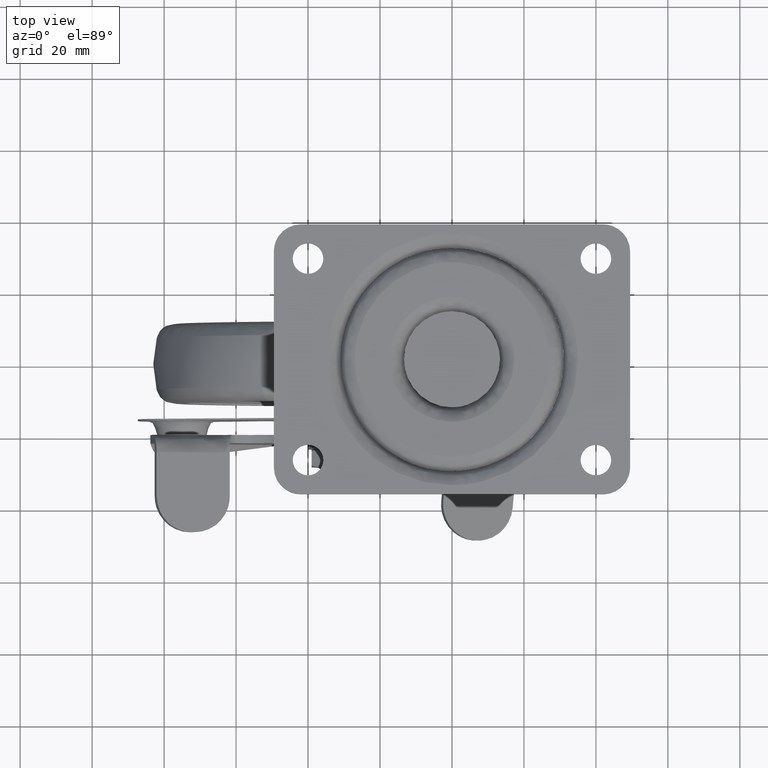
[diagram: clean part render]
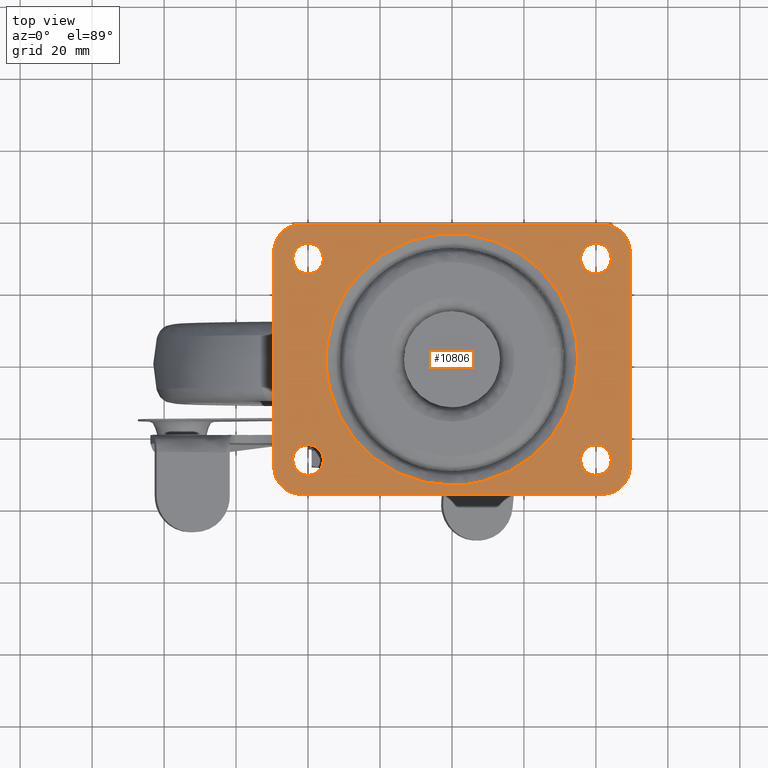
[diagram: same view with one face highlighted and labeled with its STEP entity id]
A machine part, top view. The second image highlights one B-rep face of the part: STEP entity #10806.
In plain terms, the highlighted face is a freeform B-spline surface patch.
Its self-contained STEP definition (entity closure, byte-faithful):
#8791=CARTESIAN_POINT('',(-43.245111158380283,25.255595950941501,-1.531020E-013));
#8792=VERTEX_POINT('',#8791);
#8793=CARTESIAN_POINT('',(-40.000000007030842,23.750000000000000,0.0));
#8794=VERTEX_POINT('',#8793);
#8795=CARTESIAN_POINT('',(-43.245111158380283,25.255595950941501,-1.531020E-013));
#8796=CARTESIAN_POINT('',(-42.873007158652783,24.814526816562061,-1.355464E-013));
#8797=CARTESIAN_POINT('',(-41.883611780580779,24.040215409840680,-8.886743E-014));
#8798=CARTESIAN_POINT('',(-40.654074814007579,23.748799131971840,-3.085877E-014));
#8799=CARTESIAN_POINT('',(-40.000000007030842,23.750000000000000,0.0));
#8800=B_SPLINE_CURVE_WITH_KNOTS('',3,(#8795,#8796,#8797,#8798,#8799),.UNSPECIFIED.,.F.,.U.,(4,1,4),(0.000000175335271,1.730903386719086,3.692519760569867),.UNSPECIFIED.);
#8801=EDGE_CURVE('',#8792,#8794,#8800,.T.);
#8803=CARTESIAN_POINT('',(-35.750000000000007,28.0,0.0));
#8804=VERTEX_POINT('',#8803);
#8805=CARTESIAN_POINT('',(-40.000000007030842,23.750000000000000,0.0));
#8806=CARTESIAN_POINT('',(-39.513149679257943,23.749630712320251,0.0));
#8807=CARTESIAN_POINT('',(-38.783260650930828,23.876905471908099,0.0));
#8808=CARTESIAN_POINT('',(-37.799607460227911,24.327477978835208,0.0));
#8809=CARTESIAN_POINT('',(-37.039899202134563,24.890879052696182,0.0));
#8810=CARTESIAN_POINT('',(-36.283952298328693,25.811568538038749,0.0));
#8811=CARTESIAN_POINT('',(-35.838469138767508,26.887272070460000,0.0));
#8812=CARTESIAN_POINT('',(-35.749994835164067,27.687099821345090,0.0));
#8813=CARTESIAN_POINT('',(-35.750000000000007,28.0,0.0));
#8814=B_SPLINE_CURVE_WITH_KNOTS('',3,(#8805,#8806,#8807,#8808,#8809,#8810,#8811,#8812,#8813),.UNSPECIFIED.,.F.,.U.,(4,1,1,1,1,1,4),(0.000000610169108,1.460384444602640,2.190586500925202,3.233799715285539,4.276791249332936,5.737286931635098,6.676051917444857),.UNSPECIFIED.);
#8815=EDGE_CURVE('',#8794,#8804,#8814,.T.);
#8817=CARTESIAN_POINT('',(-39.999999992969137,32.250000000000000,0.0));
#8818=VERTEX_POINT('',#8817);
#8819=CARTESIAN_POINT('',(-35.750000000000007,28.0,0.0));
#8820=CARTESIAN_POINT('',(-35.749377956127681,28.556413172663810,0.0));
#8821=CARTESIAN_POINT('',(-35.944070303442587,29.529485412856150,0.0));
#8822=CARTESIAN_POINT('',(-36.720879381863057,30.826101737560951,0.0));
#8823=CARTESIAN_POINT('',(-37.722016182516882,31.668431585995481,0.0));
#8824=CARTESIAN_POINT('',(-38.887436249880132,32.150727476769873,0.0));
#8825=CARTESIAN_POINT('',(-39.617518860167763,32.250123377384092,0.0));
#8826=CARTESIAN_POINT('',(-39.999999992969137,32.250000000000000,0.0));
#8827=B_SPLINE_CURVE_WITH_KNOTS('',3,(#8819,#8820,#8821,#8822,#8823,#8824,#8825,#8826),.UNSPECIFIED.,.F.,.U.,(4,1,1,1,1,4),(0.000000610181033,1.669013942489665,2.920797959335585,4.485463717099627,5.528614451983849,6.676051909519222),.UNSPECIFIED.);
#8828=EDGE_CURVE('',#8804,#8818,#8827,.T.);
#8830=CARTESIAN_POINT('',(-42.925507204851328,31.082840829404390,-2.609926E-013));
#8831=VERTEX_POINT('',#8830);
#8832=CARTESIAN_POINT('',(-39.999999992969137,32.250000000000000,0.0));
#8833=CARTESIAN_POINT('',(-40.436940726286593,32.250147792248057,-3.898070E-014));
#8834=CARTESIAN_POINT('',(-41.512504091818514,32.082824640266921,-1.349347E-013));
#8835=CARTESIAN_POINT('',(-42.462834955156417,31.523338014700119,-2.197163E-013));
#8836=CARTESIAN_POINT('',(-42.925507204851328,31.082840829404390,-2.609926E-013));
#8837=B_SPLINE_CURVE_WITH_KNOTS('',3,(#8832,#8833,#8834,#8835,#8836),.UNSPECIFIED.,.F.,.U.,(4,1,4),(0.000000157543021,1.310877600387160,3.226753481196697),.UNSPECIFIED.);
#8838=EDGE_CURVE('',#8818,#8831,#8837,.T.);
#8915=CARTESIAN_POINT('',(-44.250000000000000,28.0,0.0));
#8916=VERTEX_POINT('',#8915);
#8917=CARTESIAN_POINT('',(-44.250000000000000,28.0,0.0));
#8918=CARTESIAN_POINT('',(-44.251052834216097,27.378224834722079,-3.468695E-014));
#8919=CARTESIAN_POINT('',(-44.027604194984967,26.384735975595522,-9.011068E-014));
#8920=CARTESIAN_POINT('',(-43.486006031199892,25.540295359438218,-1.372195E-013));
#8921=CARTESIAN_POINT('',(-43.245111158380283,25.255595950941501,-1.531020E-013));
#8922=B_SPLINE_CURVE_WITH_KNOTS('',3,(#8917,#8918,#8919,#8920,#8921),.UNSPECIFIED.,.F.,.U.,(4,1,4),(0.000000135857924,1.864682307735543,2.983537809848643),.UNSPECIFIED.);
#8923=EDGE_CURVE('',#8916,#8792,#8922,.T.);
#8945=CARTESIAN_POINT('',(-42.925507204851328,31.082840829404390,-2.609926E-013));
#8946=CARTESIAN_POINT('',(-43.186177658330521,30.835568386156648,-2.400586E-013));
#8947=CARTESIAN_POINT('',(-43.690212468562223,30.218360056900600,-1.878059E-013));
#8948=CARTESIAN_POINT('',(-44.149290726819729,29.149755732362749,-9.733806E-014));
#8949=CARTESIAN_POINT('',(-44.250068208116438,28.359292795765121,-3.041765E-014));
#8950=CARTESIAN_POINT('',(-44.250000000000000,28.0,0.0));
#8951=B_SPLINE_CURVE_WITH_KNOTS('',3,(#8945,#8946,#8947,#8948,#8949,#8950),.UNSPECIFIED.,.F.,.U.,(4,1,1,4),(0.000000168638875,1.077921643789269,2.371377519272554,3.449298994423457),.UNSPECIFIED.);
#8952=EDGE_CURVE('',#8831,#8916,#8951,.T.);
#9201=CARTESIAN_POINT('',(36.754888841619731,25.255595950941501,-1.531020E-013));
#9202=VERTEX_POINT('',#9201);
#9203=CARTESIAN_POINT('',(39.999999992969173,23.750000000000000,0.0));
#9204=VERTEX_POINT('',#9203);
#9205=CARTESIAN_POINT('',(36.754888841619731,25.255595950941501,-1.531020E-013));
#9206=CARTESIAN_POINT('',(37.176317317253670,24.755366457429741,-1.332193E-013));
#9207=CARTESIAN_POINT('',(38.192799264617243,24.004771096375329,-8.526241E-014));
#9208=CARTESIAN_POINT('',(39.422944903239490,23.749306665059791,-2.722504E-014));
#9209=CARTESIAN_POINT('',(39.999999992969173,23.750000000000000,0.0));
#9210=B_SPLINE_CURVE_WITH_KNOTS('',3,(#9205,#9206,#9207,#9208,#9209),.UNSPECIFIED.,.F.,.U.,(4,1,4),(0.000000175336035,1.961616549186187,3.692519760569872),.UNSPECIFIED.);
#9211=EDGE_CURVE('',#9202,#9204,#9210,.T.);
#9213=CARTESIAN_POINT('',(44.250000000000000,28.0,0.0));
#9214=VERTEX_POINT('',#9213);
#9215=CARTESIAN_POINT('',(39.999999992969173,23.750000000000000,0.0));
#9216=CARTESIAN_POINT('',(40.556445408870893,23.749354849617589,0.0));
#9217=CARTESIAN_POINT('',(41.425180527785713,23.923261653540258,0.0));
#9218=CARTESIAN_POINT('',(42.436436763717452,24.480076632192230,0.0));
#9219=CARTESIAN_POINT('',(43.283442485622082,25.210012440270098,0.0));
#9220=CARTESIAN_POINT('',(44.035257065258122,26.366118531252770,0.0));
#9221=CARTESIAN_POINT('',(44.250604888365267,27.443586028327470,0.0));
#9222=CARTESIAN_POINT('',(44.250000000000000,28.0,0.0));
#9223=B_SPLINE_CURVE_WITH_KNOTS('',3,(#9215,#9216,#9217,#9218,#9219,#9220,#9221,#9222),.UNSPECIFIED.,.F.,.U.,(4,1,1,1,1,4),(0.000000610169324,1.669013944460634,2.607857540631680,3.442252155308159,5.007039090484373,6.676051917444859),.UNSPECIFIED.);
#9224=EDGE_CURVE('',#9204,#9214,#9223,.T.);
#9226=CARTESIAN_POINT('',(40.000000007030863,32.250000000000000,0.0));
#9227=VERTEX_POINT('',#9226);
#9228=CARTESIAN_POINT('',(44.250000000000000,28.0,0.0));
#9229=CARTESIAN_POINT('',(44.251230130050963,28.660895496649729,0.0));
#9230=CARTESIAN_POINT('',(43.993345067628340,29.737599622740358,0.0));
#9231=CARTESIAN_POINT('',(43.163305846010857,30.915748122596799,0.0));
#9232=CARTESIAN_POINT('',(42.323740070911427,31.604615140984940,0.0));
#9233=CARTESIAN_POINT('',(41.286300071643588,32.110994052223852,0.0));
#9234=CARTESIAN_POINT('',(40.486839256383583,32.250374570230498,0.0));
#9235=CARTESIAN_POINT('',(40.000000007030863,32.250000000000000,0.0));
#9236=B_SPLINE_CURVE_WITH_KNOTS('',3,(#9228,#9229,#9230,#9231,#9232,#9233,#9234,#9235),.UNSPECIFIED.,.F.,.U.,(4,1,1,1,1,4),(0.000000610183116,1.981975355670111,3.233799711465569,4.276791244251564,5.215669661747876,6.676051909519231),.UNSPECIFIED.);
#9237=EDGE_CURVE('',#9214,#9227,#9236,.T.);
#9239=CARTESIAN_POINT('',(37.074492795148672,31.082840829404390,-2.609926E-013));
#9240=VERTEX_POINT('',#9239);
#9241=CARTESIAN_POINT('',(40.000000007030863,32.250000000000000,0.0));
#9242=CARTESIAN_POINT('',(39.428507514163982,32.250687210027067,-5.098443E-014));
#9243=CARTESIAN_POINT('',(38.353605483945628,32.029490212164013,-1.468794E-013));
#9244=CARTESIAN_POINT('',(37.439967714250173,31.430238402211572,-2.283876E-013));
#9245=CARTESIAN_POINT('',(37.074492795148672,31.082840829404390,-2.609926E-013));
#9246=B_SPLINE_CURVE_WITH_KNOTS('',3,(#9241,#9242,#9243,#9244,#9245),.UNSPECIFIED.,.F.,.U.,(4,1,4),(0.000000157543899,1.714167012814376,3.226753481196666),.UNSPECIFIED.);
#9247=EDGE_CURVE('',#9227,#9240,#9246,.T.);
#9324=CARTESIAN_POINT('',(35.750000000000007,28.0,0.0));
#9325=VERTEX_POINT('',#9324);
#9326=CARTESIAN_POINT('',(35.750000000000007,28.0,0.0));
#9327=CARTESIAN_POINT('',(35.749699396040647,27.533777501439179,-2.600914E-014));
#9328=CARTESIAN_POINT('',(35.915411621573391,26.539518146069721,-8.147585E-014));
#9329=CARTESIAN_POINT('',(36.413272852505763,25.658704744406020,-1.306138E-013));
#9330=CARTESIAN_POINT('',(36.754888841619731,25.255595950941501,-1.531020E-013));
#9331=B_SPLINE_CURVE_WITH_KNOTS('',3,(#9326,#9327,#9328,#9329,#9330),.UNSPECIFIED.,.F.,.U.,(4,1,4),(0.000000135857209,1.398581114896894,2.983537809848643),.UNSPECIFIED.);
#9332=EDGE_CURVE('',#9325,#9202,#9331,.T.);
#9355=CARTESIAN_POINT('',(37.074492795148672,31.082840829404390,-2.609926E-013));
#9356=CARTESIAN_POINT('',(36.839908730188753,30.860278397437071,-2.421505E-013));
#9357=CARTESIAN_POINT('',(36.375341750992163,30.305905208622349,-1.952174E-013));
#9358=CARTESIAN_POINT('',(35.876792992775577,29.257438914771459,-1.064545E-013));
#9359=CARTESIAN_POINT('',(35.749818451813702,28.431170086410759,-3.650276E-014));
#9360=CARTESIAN_POINT('',(35.750000000000007,28.0,0.0));
#9361=B_SPLINE_CURVE_WITH_KNOTS('',3,(#9355,#9356,#9357,#9358,#9359,#9360),.UNSPECIFIED.,.F.,.U.,(4,1,1,4),(0.000000168638768,0.970120060262026,2.155810984877763,3.449298994423449),.UNSPECIFIED.);
#9362=EDGE_CURVE('',#9240,#9325,#9361,.T.);
#9393=CARTESIAN_POINT('',(36.754888841619731,-30.744404049058499,-1.531020E-013));
#9394=VERTEX_POINT('',#9393);
#9395=CARTESIAN_POINT('',(39.999999992969173,-32.250000000000000,0.0));
#9396=VERTEX_POINT('',#9395);
#9397=CARTESIAN_POINT('',(36.754888841619731,-30.744404049058499,-1.531020E-013));
#9398=CARTESIAN_POINT('',(37.077512304696832,-31.126537956158899,-1.378808E-013));
#9399=CARTESIAN_POINT('',(37.588999811401408,-31.549891058715811,-1.137492E-013));
#9400=CARTESIAN_POINT('',(38.692681710472982,-32.098944578485899,-6.167832E-014));
#9401=CARTESIAN_POINT('',(39.422894033882798,-32.250707943630331,-2.722744E-014));
#9402=CARTESIAN_POINT('',(39.999999992969173,-32.250000000000000,0.0));
#9403=B_SPLINE_CURVE_WITH_KNOTS('',3,(#9397,#9398,#9399,#9400,#9401,#9402),.UNSPECIFIED.,.F.,.U.,(4,1,1,4),(0.000000175333936,1.500125857536979,1.961616549185407,3.692519760569879),.UNSPECIFIED.);
#9404=EDGE_CURVE('',#9394,#9396,#9403,.T.);
#9406=CARTESIAN_POINT('',(44.250000000000000,-28.0,0.0));
#9407=VERTEX_POINT('',#9406);
#9408=CARTESIAN_POINT('',(39.999999992969173,-32.250000000000000,0.0));
#9409=CARTESIAN_POINT('',(40.382450175506378,-32.250061041285818,0.0));
#9410=CARTESIAN_POINT('',(41.251811093979292,-32.132121424247217,0.0));
#9411=CARTESIAN_POINT('',(42.368086524723360,-31.604100118658732,0.0));
#9412=CARTESIAN_POINT('',(43.328613959620867,-30.733506631489210,0.0));
#9413=CARTESIAN_POINT('',(44.049089849958747,-29.564326627845929,0.0));
#9414=CARTESIAN_POINT('',(44.250593334727157,-28.556401722722288,0.0));
#9415=CARTESIAN_POINT('',(44.250000000000000,-28.0,0.0));
#9416=B_SPLINE_CURVE_WITH_KNOTS('',3,(#9408,#9409,#9410,#9411,#9412,#9413,#9414,#9415),.UNSPECIFIED.,.F.,.U.,(4,1,1,1,1,4),(0.000000610171485,1.147434104841432,2.607857540632567,3.650905271732282,5.007039090484747,6.676051917444862),.UNSPECIFIED.);
#9417=EDGE_CURVE('',#9396,#9407,#9416,.T.);
#9419=CARTESIAN_POINT('',(40.000000007030863,-23.750000000000000,0.0));
#9420=VERTEX_POINT('',#9419);
#9421=CARTESIAN_POINT('',(44.250000000000000,-28.0,0.0));
#9422=CARTESIAN_POINT('',(44.250272542602637,-27.547951993649232,0.0));
#9423=CARTESIAN_POINT('',(44.132333193009458,-26.817971021274388,0.0));
#9424=CARTESIAN_POINT('',(43.693415462111453,-25.827749208130491,0.0));
#9425=CARTESIAN_POINT('',(43.109132132541120,-25.039848161630069,0.0));
#9426=CARTESIAN_POINT('',(42.323744349509198,-24.395375445685371,0.0));
#9427=CARTESIAN_POINT('',(41.286302905364238,-23.889003270655579,0.0));
#9428=CARTESIAN_POINT('',(40.486837114814179,-23.749632441125001,0.0));
#9429=CARTESIAN_POINT('',(40.000000007030863,-23.750000000000000,0.0));
#9430=B_SPLINE_CURVE_WITH_KNOTS('',3,(#9421,#9422,#9423,#9424,#9425,#9426,#9427,#9428,#9429),.UNSPECIFIED.,.F.,.U.,(4,1,1,1,1,1,4),(0.000000610181717,1.356053639153036,2.190586498335846,3.233799711464056,4.276791244249873,5.215669661746489,6.676051909519282),.UNSPECIFIED.);
#9431=EDGE_CURVE('',#9407,#9420,#9430,.T.);
#9433=CARTESIAN_POINT('',(37.074492795148672,-24.917159170595610,-2.609926E-013));
#9434=VERTEX_POINT('',#9433);
#9435=CARTESIAN_POINT('',(40.000000007030863,-23.750000000000000,0.0));
#9436=CARTESIAN_POINT('',(39.563057408146634,-23.749828603021189,-3.898086E-014));
#9437=CARTESIAN_POINT('',(38.487499619303293,-23.917212731319509,-1.349344E-013));
#9438=CARTESIAN_POINT('',(37.537163967822323,-24.476650305616531,-2.197164E-013));
#9439=CARTESIAN_POINT('',(37.074492795148672,-24.917159170595610,-2.609926E-013));
#9440=B_SPLINE_CURVE_WITH_KNOTS('',3,(#9435,#9436,#9437,#9438,#9439),.UNSPECIFIED.,.F.,.U.,(4,1,4),(0.000000157544670,1.310877600388028,3.226753481196673),.UNSPECIFIED.);
#9441=EDGE_CURVE('',#9420,#9434,#9440,.T.);
#9520=CARTESIAN_POINT('',(35.750000000000007,-28.0,0.0));
#9521=VERTEX_POINT('',#9520);
#9522=CARTESIAN_POINT('',(35.750000000000007,-28.0,0.0));
#9523=CARTESIAN_POINT('',(35.749539359958419,-28.528373883077190,-2.947637E-014));
#9524=CARTESIAN_POINT('',(35.938018776290320,-29.522458508603979,-8.493334E-014));
#9525=CARTESIAN_POINT('',(36.453617663628698,-30.388605422085678,-1.332530E-013));
#9526=CARTESIAN_POINT('',(36.754888841619731,-30.744404049058499,-1.531020E-013));
#9527=B_SPLINE_CURVE_WITH_KNOTS('',3,(#9522,#9523,#9524,#9525,#9526),.UNSPECIFIED.,.F.,.U.,(4,1,4),(0.000000135857523,1.584956830808986,2.983537809848650),.UNSPECIFIED.);
#9528=EDGE_CURVE('',#9521,#9394,#9527,.T.);
#9551=CARTESIAN_POINT('',(37.074492795148672,-24.917159170595610,-2.609926E-013));
#9552=CARTESIAN_POINT('',(36.813805591229688,-25.164424946919180,-2.400592E-013));
#9553=CARTESIAN_POINT('',(36.355721512457023,-25.725570694057559,-1.925527E-013));
#9554=CARTESIAN_POINT('',(35.871335512724329,-26.778519278931281,-1.034103E-013));
#9555=CARTESIAN_POINT('',(35.749789480006683,-27.568819517319920,-3.650364E-014));
#9556=CARTESIAN_POINT('',(35.750000000000007,-28.0,0.0));
#9557=B_SPLINE_CURVE_WITH_KNOTS('',3,(#9551,#9552,#9553,#9554,#9555,#9556),.UNSPECIFIED.,.F.,.U.,(4,1,1,4),(0.000000168638576,1.077921643789243,2.155810984877782,3.449298994423441),.UNSPECIFIED.);
#9558=EDGE_CURVE('',#9434,#9521,#9557,.T.);
#9589=CARTESIAN_POINT('',(-43.245111158380283,-30.744404049058510,-1.531091E-013));
#9590=VERTEX_POINT('',#9589);
#9591=CARTESIAN_POINT('',(-40.000000007030849,-32.250000000000000,0.0));
#9592=VERTEX_POINT('',#9591);
#9593=CARTESIAN_POINT('',(-43.245111158380283,-30.744404049058510,-1.531091E-013));
#9594=CARTESIAN_POINT('',(-42.872998404930357,-31.185445440079722,-1.355522E-013));
#9595=CARTESIAN_POINT('',(-41.883654013030252,-31.959912329403348,-8.887354E-014));
#9596=CARTESIAN_POINT('',(-40.654047603639000,-32.251088773038660,-3.085892E-014));
#9597=CARTESIAN_POINT('',(-40.000000007030849,-32.250000000000000,0.0));
#9598=B_SPLINE_CURVE_WITH_KNOTS('',3,(#9593,#9594,#9595,#9596,#9597),.UNSPECIFIED.,.F.,.U.,(4,1,4),(0.000000175335022,1.730903386719141,3.692519760569878),.UNSPECIFIED.);
#9599=EDGE_CURVE('',#9590,#9592,#9598,.T.);
#9601=CARTESIAN_POINT('',(-35.750000000000007,-28.0,0.0));
#9602=VERTEX_POINT('',#9601);
#9603=CARTESIAN_POINT('',(-40.000000007030849,-32.250000000000000,0.0));
#9604=CARTESIAN_POINT('',(-39.617520915816627,-32.250107697815103,0.0));
#9605=CARTESIAN_POINT('',(-38.887402296152572,-32.150791078613082,0.0));
#9606=CARTESIAN_POINT('',(-37.948773347980421,-31.761972513442061,0.0));
#9607=CARTESIAN_POINT('',(-37.177607708088232,-31.218750531178760,0.0));
#9608=CARTESIAN_POINT('',(-36.415248185894981,-30.398801855213019,0.0));
#9609=CARTESIAN_POINT('',(-35.872565082730702,-29.286621089691479,0.0));
#9610=CARTESIAN_POINT('',(-35.749940665669570,-28.382447359307761,0.0));
#9611=CARTESIAN_POINT('',(-35.750000000000007,-28.0,0.0));
#9612=B_SPLINE_CURVE_WITH_KNOTS('',3,(#9603,#9604,#9605,#9606,#9607,#9608,#9609,#9610,#9611),.UNSPECIFIED.,.F.,.U.,(4,1,1,1,1,1,4),(0.000000610172648,1.147434104842465,2.190586500926019,3.025148124161648,3.963835266991818,5.528614458540380,6.676051917444865),.UNSPECIFIED.);
#9613=EDGE_CURVE('',#9592,#9602,#9612,.T.);
#9615=CARTESIAN_POINT('',(-39.999999992969137,-23.750000000000000,0.0));
#9616=VERTEX_POINT('',#9615);
#9617=CARTESIAN_POINT('',(-35.750000000000007,-28.0,0.0));
#9618=CARTESIAN_POINT('',(-35.749671331842030,-27.513186656821301,0.0));
#9619=CARTESIAN_POINT('',(-35.901040956740111,-26.644148450987942,0.0));
#9620=CARTESIAN_POINT('',(-36.531115225366293,-25.429300209238189,0.0));
#9621=CARTESIAN_POINT('',(-37.379430684591902,-24.581085377602861,0.0));
#9622=CARTESIAN_POINT('',(-38.574846003423843,-23.923288432761680,0.0));
#9623=CARTESIAN_POINT('',(-39.443550458736823,-23.749352377359031,0.0));
#9624=CARTESIAN_POINT('',(-39.999999992969137,-23.750000000000000,0.0));
#9625=B_SPLINE_CURVE_WITH_KNOTS('',3,(#9617,#9618,#9619,#9620,#9621,#9622,#9623,#9624),.UNSPECIFIED.,.F.,.U.,(4,1,1,1,1,4),(0.000000610178352,1.460384442875003,2.607857537536324,4.068197311666718,5.007039084534333,6.676051909519239),.UNSPECIFIED.);
#9626=EDGE_CURVE('',#9602,#9616,#9625,.T.);
#9628=CARTESIAN_POINT('',(-42.925507204851328,-24.917159170595610,-2.613326E-013));
#9629=VERTEX_POINT('',#9628);
#9630=CARTESIAN_POINT('',(-39.999999992969137,-23.750000000000000,0.0));
#9631=CARTESIAN_POINT('',(-40.436963786471779,-23.749804128301822,-3.903354E-014));
#9632=CARTESIAN_POINT('',(-41.512427128599690,-23.917293709253400,-1.351036E-013));
#9633=CARTESIAN_POINT('',(-42.462899946339881,-24.476573813963391,-2.200084E-013));
#9634=CARTESIAN_POINT('',(-42.925507204851328,-24.917159170595610,-2.613326E-013));
#9635=B_SPLINE_CURVE_WITH_KNOTS('',3,(#9630,#9631,#9632,#9633,#9634),.UNSPECIFIED.,.F.,.U.,(4,1,4),(0.000000157543280,1.310877600387448,3.226753481196663),.UNSPECIFIED.);
#9636=EDGE_CURVE('',#9616,#9629,#9635,.T.);
#9714=CARTESIAN_POINT('',(-44.250000000000000,-28.0,0.0));
#9715=VERTEX_POINT('',#9714);
#9716=CARTESIAN_POINT('',(-44.250000000000000,-28.0,0.0));
#9717=CARTESIAN_POINT('',(-44.250273844956247,-28.466212832316920,-2.600980E-014));
#9718=CARTESIAN_POINT('',(-44.084701279622657,-29.460526151662631,-8.148210E-014));
#9719=CARTESIAN_POINT('',(-43.586636158514089,-30.341249435015431,-1.306173E-013));
#9720=CARTESIAN_POINT('',(-43.245111158380283,-30.744404049058510,-1.531091E-013));
#9721=B_SPLINE_CURVE_WITH_KNOTS('',3,(#9716,#9717,#9718,#9719,#9720),.UNSPECIFIED.,.F.,.U.,(4,1,4),(0.000000135858468,1.398581114897341,2.983537809848640),.UNSPECIFIED.);
#9722=EDGE_CURVE('',#9715,#9590,#9721,.T.);
#9744=CARTESIAN_POINT('',(-42.925507204851328,-24.917159170595610,-2.613326E-013));
#9745=CARTESIAN_POINT('',(-43.316880625645432,-25.287812099338240,-2.299123E-013));
#9746=CARTESIAN_POINT('',(-43.997421071214852,-26.240235684925310,-1.491753E-013));
#9747=CARTESIAN_POINT('',(-44.250924293101832,-27.389052853839480,-5.179003E-014));
#9748=CARTESIAN_POINT('',(-44.250000000000000,-28.0,0.0));
#9749=B_SPLINE_CURVE_WITH_KNOTS('',3,(#9744,#9745,#9746,#9747,#9748),.UNSPECIFIED.,.F.,.U.,(4,1,4),(0.000000168640057,1.616900049702448,3.449298994423432),.UNSPECIFIED.);
#9750=EDGE_CURVE('',#9629,#9715,#9749,.T.);
#9845=CARTESIAN_POINT('',(-34.699342533246757,4.383546375443789,-6.240247E-016));
#9846=VERTEX_POINT('',#9845);
#9858=CARTESIAN_POINT('',(-34.975131901967437,0.0,0.0));
#9859=VERTEX_POINT('',#9858);
#9860=CARTESIAN_POINT('',(-34.975131901967437,0.0,0.0));
#9861=CARTESIAN_POINT('',(-34.975167394290906,1.465036884816739,8.030798E-020));
#9862=CARTESIAN_POINT('',(-34.882984638745462,2.930065715102781,-2.085003E-016));
#9863=CARTESIAN_POINT('',(-34.699342533246757,4.383546375443789,-6.240247E-016));
#9864=B_SPLINE_CURVE_WITH_KNOTS('',3,(#9860,#9861,#9862,#9863),.UNSPECIFIED.,.F.,.U.,(4,4),(1.053081E-009,4.395115994135950),.UNSPECIFIED.);
#9865=EDGE_CURVE('',#9859,#9846,#9864,.T.);
#9867=CARTESIAN_POINT('',(-0.000002991284869,-34.975131901967323,0.0));
#9868=VERTEX_POINT('',#9867);
#9869=CARTESIAN_POINT('',(-0.000002991284869,-34.975131901967323,0.0));
#9870=CARTESIAN_POINT('',(-2.432219045168783,-34.975537640939173,0.0));
#9871=CARTESIAN_POINT('',(-6.008778062607380,-34.600458191031770,0.0));
#9872=CARTESIAN_POINT('',(-10.925955876321259,-33.304358946050137,0.0));
#9873=CARTESIAN_POINT('',(-14.599970653065350,-31.874126834020760,0.0));
#9874=CARTESIAN_POINT('',(-19.275897651851199,-29.375274173179299,0.0));
#9875=CARTESIAN_POINT('',(-23.674418576763991,-26.007243161248851,0.0));
#9876=CARTESIAN_POINT('',(-27.335101643020248,-21.967713624090550,0.0));
#9877=CARTESIAN_POINT('',(-29.840135192666722,-18.387531855976921,0.0));
#9878=CARTESIAN_POINT('',(-32.129845277921397,-14.166682731516850,0.0));
#9879=CARTESIAN_POINT('',(-34.332430554918332,-8.011601427637967,0.0));
#9880=CARTESIAN_POINT('',(-34.975891429975952,-2.932990893610560,0.0));
#9881=CARTESIAN_POINT('',(-34.975131901967437,0.0,0.0));
#9882=B_SPLINE_CURVE_WITH_KNOTS('',3,(#9869,#9870,#9871,#9872,#9873,#9874,#9875,#9876,#9877,#9878,#9879,#9880,#9881),.UNSPECIFIED.,.F.,.U.,(4,1,1,1,1,1,1,1,1,1,4),(0.000000192563753,7.296536571594338,10.730230955501240,15.236965610182560,19.099858253689899,26.611063230591618,31.761474071046269,35.409819456154189,39.701933793543581,46.140095465255683,54.938893217891597),.UNSPECIFIED.);
#9883=EDGE_CURVE('',#9868,#9859,#9882,.T.);
#9885=CARTESIAN_POINT('',(34.975131901967437,0.0,0.0));
#9886=VERTEX_POINT('',#9885);
#9887=CARTESIAN_POINT('',(34.975131901967437,0.0,0.0));
#9888=CARTESIAN_POINT('',(34.975943745280922,-3.004551240099140,0.0));
#9889=CARTESIAN_POINT('',(34.390786478855517,-7.510774535535738,0.0));
#9890=CARTESIAN_POINT('',(32.166491434838782,-14.174456256125129,0.0));
#9891=CARTESIAN_POINT('',(29.096949160260380,-19.876035483081999,0.0));
#9892=CARTESIAN_POINT('',(24.945283840043139,-24.748397412053009,0.0));
#9893=CARTESIAN_POINT('',(20.283887570891249,-28.670581988729310,0.0));
#9894=CARTESIAN_POINT('',(15.792869409434781,-31.381267151508570,0.0));
#9895=CARTESIAN_POINT('',(10.999503010765340,-33.297865444942794,0.0));
#9896=CARTESIAN_POINT('',(5.937268788378101,-34.615624456503191,0.0));
#9897=CARTESIAN_POINT('',(2.289119747119346,-34.975422748931592,0.0));
#9898=CARTESIAN_POINT('',(-0.000002991284869,-34.975131901967323,0.0));
#9899=B_SPLINE_CURVE_WITH_KNOTS('',3,(#9887,#9888,#9889,#9890,#9891,#9892,#9893,#9894,#9895,#9896,#9897,#9898),.UNSPECIFIED.,.F.,.U.,(4,1,1,1,1,1,1,1,1,4),(0.000000192361554,9.013381605136367,13.520118440718530,21.031363768882461,28.327835371218018,32.619898317362271,39.272725649382011,43.994040879531781,48.071596237326652,54.938896589771858),.UNSPECIFIED.);
#9900=EDGE_CURVE('',#9886,#9868,#9899,.T.);
#9902=CARTESIAN_POINT('',(4.383546375442683,34.699342533178637,-5.616222E-016));
#9903=VERTEX_POINT('',#9902);
#9904=CARTESIAN_POINT('',(4.383546375442683,34.699342533178637,-5.616222E-016));
#9905=CARTESIAN_POINT('',(6.472937722910738,34.435530951718746,-5.232637E-016));
#9906=CARTESIAN_POINT('',(10.991144945531451,33.444174543985973,-4.403152E-016));
#9907=CARTESIAN_POINT('',(17.294864220954540,30.677948116097120,-3.245870E-016));
#9908=CARTESIAN_POINT('',(22.256494178715059,27.159269183798610,-2.334979E-016));
#9909=CARTESIAN_POINT('',(26.518971599634821,23.032893871561409,-1.552442E-016));
#9910=CARTESIAN_POINT('',(29.932515655766320,18.481789385423429,-9.257596E-017));
#9911=CARTESIAN_POINT('',(32.848484910624641,12.555408488102699,-3.904251E-017));
#9912=CARTESIAN_POINT('',(34.581744193703067,6.449540195701138,-7.222093E-018));
#9913=CARTESIAN_POINT('',(34.975292511798131,2.105986161737368,2.948590E-021));
#9914=CARTESIAN_POINT('',(34.975131901967437,0.0,0.0));
#9915=B_SPLINE_CURVE_WITH_KNOTS('',3,(#9904,#9905,#9906,#9907,#9908,#9909,#9910,#9911,#9912,#9913,#9914),.UNSPECIFIED.,.F.,.U.,(4,1,1,1,1,1,1,1,4),(0.000000065556918,6.317967761265464,13.820628422439970,20.533559539422129,24.482266251421532,31.589957678240239,37.513103833856363,44.226001029283601,50.543972448884659),.UNSPECIFIED.);
#9916=EDGE_CURVE('',#9903,#9886,#9915,.T.);
#9965=CARTESIAN_POINT('',(-34.699342533246757,4.383546375443789,-6.240247E-016));
#9966=CARTESIAN_POINT('',(-34.394898808766058,6.796631393845896,-5.458326E-016));
#9967=CARTESIAN_POINT('',(-33.574524430918771,10.297978543335599,-4.422562E-016));
#9968=CARTESIAN_POINT('',(-31.458140730610271,15.545381955471930,-3.101686E-016));
#9969=CARTESIAN_POINT('',(-29.025500120277350,19.780033081876478,-2.224829E-016));
#9970=CARTESIAN_POINT('',(-25.323464987021030,24.349015822090930,-1.559834E-016));
#9971=CARTESIAN_POINT('',(-21.191358534228730,28.026398700352210,-1.325308E-016));
#9972=CARTESIAN_POINT('',(-16.516349927607191,30.967377257968110,-1.495293E-016));
#9973=CARTESIAN_POINT('',(-11.992888259301131,32.973178388411547,-1.959550E-016));
#9974=CARTESIAN_POINT('',(-7.650921775950375,34.218386643629152,-2.647948E-016));
#9975=CARTESIAN_POINT('',(-2.201814467381063,35.078853973381257,-3.762547E-016));
#9976=CARTESIAN_POINT('',(1.757640058232844,35.031635854249600,-4.812476E-016));
#9977=CARTESIAN_POINT('',(4.383546375442683,34.699342533178637,-5.616222E-016));
#9978=B_SPLINE_CURVE_WITH_KNOTS('',3,(#9965,#9966,#9967,#9968,#9969,#9970,#9971,#9972,#9973,#9974,#9975,#9976,#9977),.UNSPECIFIED.,.F.,.U.,(4,1,1,1,1,1,1,1,1,1,4),(0.000000192531417,7.296536793272566,10.730231281381940,16.953810770129419,21.889789471244431,28.327834491539711,33.478321760296012,38.414302901900427,43.135617985688093,46.998521886966813,54.938894886347967),.UNSPECIFIED.);
#9979=EDGE_CURVE('',#9846,#9903,#9978,.T.);
#10672=CARTESIAN_POINT('',(-54.445049808118803,41.246249854635437,0.0));
#10673=CARTESIAN_POINT('',(54.445052463505732,41.246249854635437,0.0));
#10674=CARTESIAN_POINT('',(-54.445049808118803,-41.246251866292198,0.0));
#10675=CARTESIAN_POINT('',(54.445052463505732,-41.246251866292198,0.0));
#10676=B_SPLINE_SURFACE_WITH_KNOTS('',1,1,((#10672,#10674),(#10673,#10675)),.UNSPECIFIED.,.F.,.F.,.U.,(2,2),(2,2),(0.0,108.890102271624500),(0.0,82.492501720927635),.UNSPECIFIED.);
#10677=CARTESIAN_POINT('',(42.0,37.500000000000000,0.0));
#10678=VERTEX_POINT('',#10677);
#10679=CARTESIAN_POINT('',(-42.0,37.500000000000000,0.0));
#10680=VERTEX_POINT('',#10679);
#10681=CARTESIAN_POINT('',(42.0,37.500000000000000,0.0));
#10682=CARTESIAN_POINT('',(-42.0,37.500000000000000,0.0));
#10683=QUASI_UNIFORM_CURVE('',1,(#10681,#10682),.UNSPECIFIED.,.F.,.U.);
#10684=EDGE_CURVE('',#10678,#10680,#10683,.T.);
#10685=ORIENTED_EDGE('',*,*,#10684,.T.);
#10686=CARTESIAN_POINT('',(-49.500000000000000,30.0,0.0));
#10687=VERTEX_POINT('',#10686);
#10688=CARTESIAN_POINT('',(-42.0,37.500000000000000,0.0));
#10689=CARTESIAN_POINT('',(-42.490849602914139,37.500054830259067,0.0));
#10690=CARTESIAN_POINT('',(-43.533964700516847,37.397271459993817,0.0));
#10691=CARTESIAN_POINT('',(-44.887551700257980,36.968494073653837,0.0));
#10692=CARTESIAN_POINT('',(-46.135569760948052,36.301343341142953,0.0));
#10693=CARTESIAN_POINT('',(-47.204851375713083,35.466847872149188,0.0));
#10694=CARTESIAN_POINT('',(-48.332795474917972,34.159830063852667,0.0));
#10695=CARTESIAN_POINT('',(-49.252890554888140,32.331443698917028,0.0));
#10696=CARTESIAN_POINT('',(-49.500458569628222,30.797716408045510,0.0));
#10697=CARTESIAN_POINT('',(-49.500000000000000,30.0,0.0));
#10698=B_SPLINE_CURVE_WITH_KNOTS('',3,(#10688,#10689,#10690,#10691,#10692,#10693,#10694,#10695,#10696,#10697),.UNSPECIFIED.,.F.,.U.,(4,1,1,1,1,1,1,4),(0.000000204037182,1.472595122275816,3.129401167707794,4.233950089309100,5.706570172779434,7.179142787782173,9.388214081776681,11.781268082512140),.UNSPECIFIED.);
#10699=EDGE_CURVE('',#10680,#10687,#10698,.T.);
#10700=ORIENTED_EDGE('',*,*,#10699,.T.);
#10701=CARTESIAN_POINT('',(-49.500000000000000,-30.0,0.0));
#10702=VERTEX_POINT('',#10701);
#10703=CARTESIAN_POINT('',(-49.500000000000000,30.0,0.0));
#10704=CARTESIAN_POINT('',(-49.500000000000000,-30.0,0.0));
#10705=QUASI_UNIFORM_CURVE('',1,(#10703,#10704),.UNSPECIFIED.,.F.,.U.);
#10706=EDGE_CURVE('',#10687,#10702,#10705,.T.);
#10707=ORIENTED_EDGE('',*,*,#10706,.T.);
#10708=CARTESIAN_POINT('',(-42.0,-37.500000000000000,0.0));
#10709=VERTEX_POINT('',#10708);
#10710=CARTESIAN_POINT('',(-49.500000000000000,-30.0,0.0));
#10711=CARTESIAN_POINT('',(-49.500147427376319,-30.613587093901970,0.0));
#10712=CARTESIAN_POINT('',(-49.371257230156822,-31.656626448595631,0.0));
#10713=CARTESIAN_POINT('',(-48.870319184140477,-33.112506079435853,0.0));
#10714=CARTESIAN_POINT('',(-48.050097530124567,-34.561208612872228,0.0));
#10715=CARTESIAN_POINT('',(-46.852493786111779,-35.818916161882470,0.0));
#10716=CARTESIAN_POINT('',(-45.497993271001548,-36.676324430045590,0.0));
#10717=CARTESIAN_POINT('',(-43.963258612436377,-37.312224188905411,0.0));
#10718=CARTESIAN_POINT('',(-42.797731885714697,-37.500426366457027,0.0));
#10719=CARTESIAN_POINT('',(-42.0,-37.500000000000000,0.0));
#10720=B_SPLINE_CURVE_WITH_KNOTS('',3,(#10710,#10711,#10712,#10713,#10714,#10715,#10716,#10717,#10718,#10719),.UNSPECIFIED.,.F.,.U.,(4,1,1,1,1,1,1,4),(0.000000204041823,1.840775605255438,3.129401167710254,4.602125498769825,6.810980534313400,8.283688144011173,9.388214081776898,11.781268082512140),.UNSPECIFIED.);
#10721=EDGE_CURVE('',#10702,#10709,#10720,.T.);
#10722=ORIENTED_EDGE('',*,*,#10721,.T.);
#10723=CARTESIAN_POINT('',(42.0,-37.500000000000000,0.0));
#10724=VERTEX_POINT('',#10723);
#10725=CARTESIAN_POINT('',(-42.0,-37.500000000000000,0.0));
#10726=CARTESIAN_POINT('',(42.0,-37.500000000000000,0.0));
#10727=QUASI_UNIFORM_CURVE('',1,(#10725,#10726),.UNSPECIFIED.,.F.,.U.);
#10728=EDGE_CURVE('',#10709,#10724,#10727,.T.);
#10729=ORIENTED_EDGE('',*,*,#10728,.T.);
#10730=CARTESIAN_POINT('',(49.500000000000000,-30.0,0.0));
#10731=VERTEX_POINT('',#10730);
#10732=CARTESIAN_POINT('',(42.0,-37.500000000000000,0.0));
#10733=CARTESIAN_POINT('',(42.490849602914139,-37.500054830259067,0.0));
#10734=CARTESIAN_POINT('',(43.533964700516847,-37.397271459993817,0.0));
#10735=CARTESIAN_POINT('',(44.887551700257980,-36.968494073653837,0.0));
#10736=CARTESIAN_POINT('',(46.135569760948052,-36.301343341142953,0.0));
#10737=CARTESIAN_POINT('',(47.204851375713083,-35.466847872149188,0.0));
#10738=CARTESIAN_POINT('',(48.332795474917972,-34.159830063852667,0.0));
#10739=CARTESIAN_POINT('',(49.252890554888140,-32.331443698917028,0.0));
#10740=CARTESIAN_POINT('',(49.500458569628222,-30.797716408045510,0.0));
#10741=CARTESIAN_POINT('',(49.500000000000000,-30.0,0.0));
#10742=B_SPLINE_CURVE_WITH_KNOTS('',3,(#10732,#10733,#10734,#10735,#10736,#10737,#10738,#10739,#10740,#10741),.UNSPECIFIED.,.F.,.U.,(4,1,1,1,1,1,1,4),(0.000000204037182,1.472595122275816,3.129401167707794,4.233950089309100,5.706570172779434,7.179142787782173,9.388214081776681,11.781268082512140),.UNSPECIFIED.);
#10743=EDGE_CURVE('',#10724,#10731,#10742,.T.);
#10744=ORIENTED_EDGE('',*,*,#10743,.T.);
#10745=CARTESIAN_POINT('',(49.500000000000000,30.0,0.0));
#10746=VERTEX_POINT('',#10745);
#10747=CARTESIAN_POINT('',(49.500000000000000,-30.0,0.0));
#10748=CARTESIAN_POINT('',(49.500000000000000,30.0,0.0));
#10749=QUASI_UNIFORM_CURVE('',1,(#10747,#10748),.UNSPECIFIED.,.F.,.U.);
#10750=EDGE_CURVE('',#10731,#10746,#10749,.T.);
#10751=ORIENTED_EDGE('',*,*,#10750,.T.);
#10752=CARTESIAN_POINT('',(49.500000000000000,30.0,0.0));
#10753=CARTESIAN_POINT('',(49.500147427376319,30.613587093901970,0.0));
#10754=CARTESIAN_POINT('',(49.371257230156822,31.656626448595631,0.0));
#10755=CARTESIAN_POINT('',(48.870319184140477,33.112506079435853,0.0));
#10756=CARTESIAN_POINT('',(48.050097530124567,34.561208612872228,0.0));
#10757=CARTESIAN_POINT('',(46.852493786111779,35.818916161882470,0.0));
#10758=CARTESIAN_POINT('',(45.497993271001548,36.676324430045590,0.0));
#10759=CARTESIAN_POINT('',(43.963258612436377,37.312224188905411,0.0));
#10760=CARTESIAN_POINT('',(42.797731885714697,37.500426366457027,0.0));
#10761=CARTESIAN_POINT('',(42.0,37.500000000000000,0.0));
#10762=B_SPLINE_CURVE_WITH_KNOTS('',3,(#10752,#10753,#10754,#10755,#10756,#10757,#10758,#10759,#10760,#10761),.UNSPECIFIED.,.F.,.U.,(4,1,1,1,1,1,1,4),(0.000000204041823,1.840775605255438,3.129401167710254,4.602125498769825,6.810980534313400,8.283688144011173,9.388214081776898,11.781268082512140),.UNSPECIFIED.);
#10763=EDGE_CURVE('',#10746,#10678,#10762,.T.);
#10764=ORIENTED_EDGE('',*,*,#10763,.T.);
#10765=EDGE_LOOP('',(#10685,#10700,#10707,#10722,#10729,#10744,#10751,#10764));
#10766=FACE_OUTER_BOUND('',#10765,.T.);
#10767=ORIENTED_EDGE('',*,*,#9865,.T.);
#10768=ORIENTED_EDGE('',*,*,#9979,.T.);
#10769=ORIENTED_EDGE('',*,*,#9916,.T.);
#10770=ORIENTED_EDGE('',*,*,#9900,.T.);
#10771=ORIENTED_EDGE('',*,*,#9883,.T.);
#10772=EDGE_LOOP('',(#10767,#10768,#10769,#10770,#10771));
#10773=FACE_BOUND('',#10772,.T.);
#10774=ORIENTED_EDGE('',*,*,#8815,.F.);
#10775=ORIENTED_EDGE('',*,*,#8801,.F.);
#10776=ORIENTED_EDGE('',*,*,#8923,.F.);
#10777=ORIENTED_EDGE('',*,*,#8952,.F.);
#10778=ORIENTED_EDGE('',*,*,#8838,.F.);
#10779=ORIENTED_EDGE('',*,*,#8828,.F.);
#10780=EDGE_LOOP('',(#10774,#10775,#10776,#10777,#10778,#10779));
#10781=FACE_BOUND('',#10780,.T.);
#10782=ORIENTED_EDGE('',*,*,#9224,.F.);
#10783=ORIENTED_EDGE('',*,*,#9211,.F.);
#10784=ORIENTED_EDGE('',*,*,#9332,.F.);
#10785=ORIENTED_EDGE('',*,*,#9362,.F.);
#10786=ORIENTED_EDGE('',*,*,#9247,.F.);
#10787=ORIENTED_EDGE('',*,*,#9237,.F.);
#10788=EDGE_LOOP('',(#10782,#10783,#10784,#10785,#10786,#10787));
#10789=FACE_BOUND('',#10788,.T.);
#10790=ORIENTED_EDGE('',*,*,#9417,.F.);
#10791=ORIENTED_EDGE('',*,*,#9404,.F.);
#10792=ORIENTED_EDGE('',*,*,#9528,.F.);
#10793=ORIENTED_EDGE('',*,*,#9558,.F.);
#10794=ORIENTED_EDGE('',*,*,#9441,.F.);
#10795=ORIENTED_EDGE('',*,*,#9431,.F.);
#10796=EDGE_LOOP('',(#10790,#10791,#10792,#10793,#10794,#10795));
#10797=FACE_BOUND('',#10796,.T.);
#10798=ORIENTED_EDGE('',*,*,#9613,.F.);
#10799=ORIENTED_EDGE('',*,*,#9599,.F.);
#10800=ORIENTED_EDGE('',*,*,#9722,.F.);
#10801=ORIENTED_EDGE('',*,*,#9750,.F.);
#10802=ORIENTED_EDGE('',*,*,#9636,.F.);
#10803=ORIENTED_EDGE('',*,*,#9626,.F.);
#10804=EDGE_LOOP('',(#10798,#10799,#10800,#10801,#10802,#10803));
#10805=FACE_BOUND('',#10804,.T.);
#10806=ADVANCED_FACE('',(#10766,#10773,#10781,#10789,#10797,#10805),#10676,.F.);